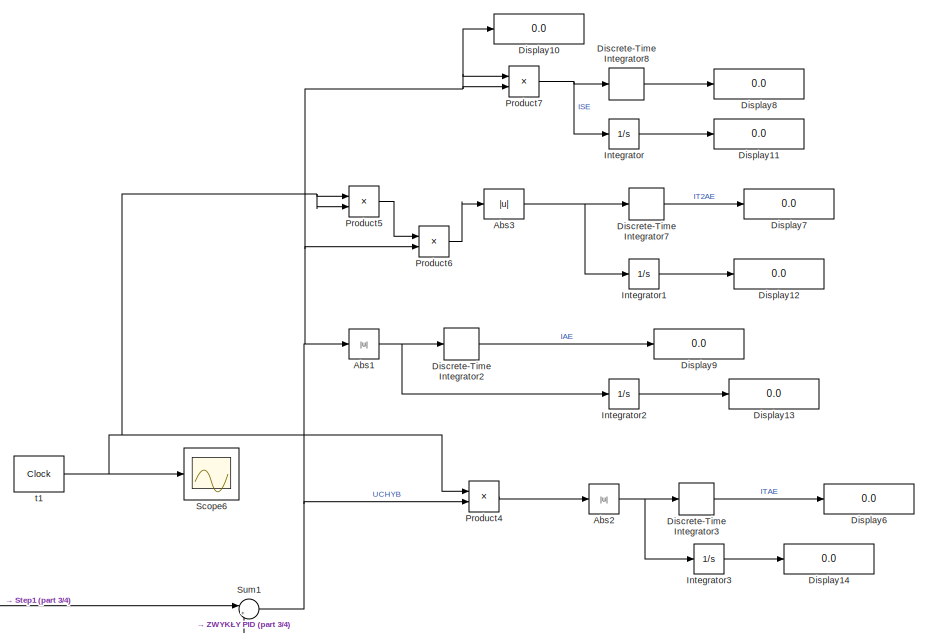
[diagram: root canvas - part 1/4, top center region]
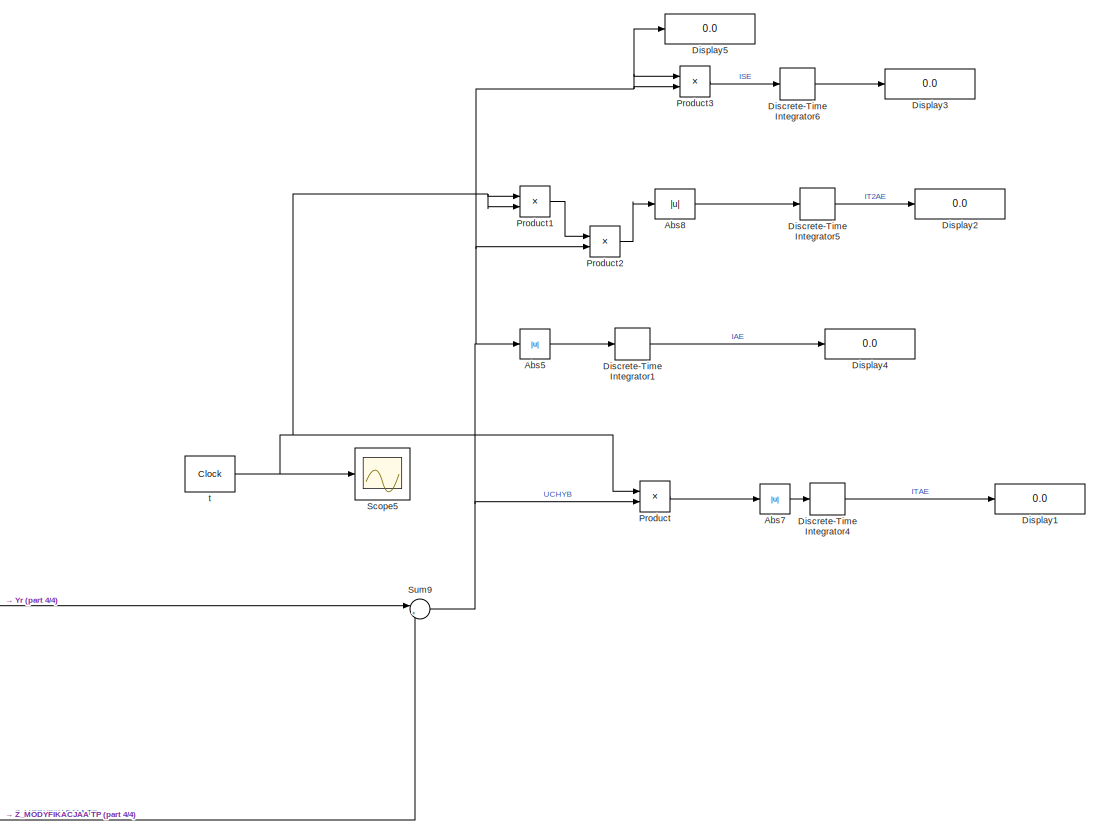
[diagram: root canvas - part 2/4, middle right region]
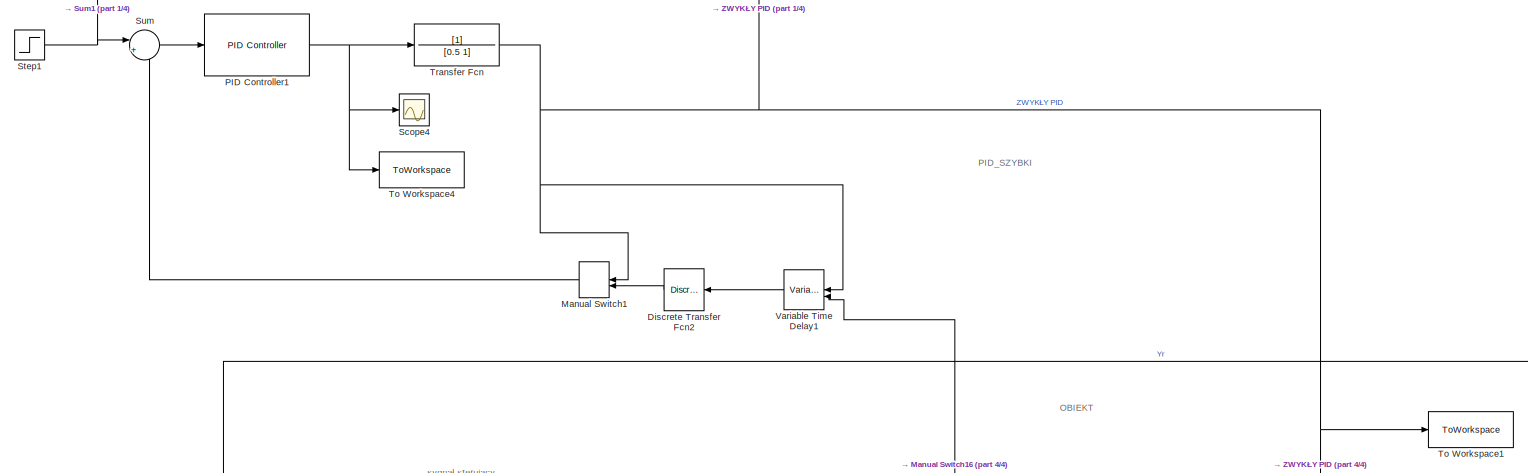
[diagram: root canvas - part 3/4, middle left region]
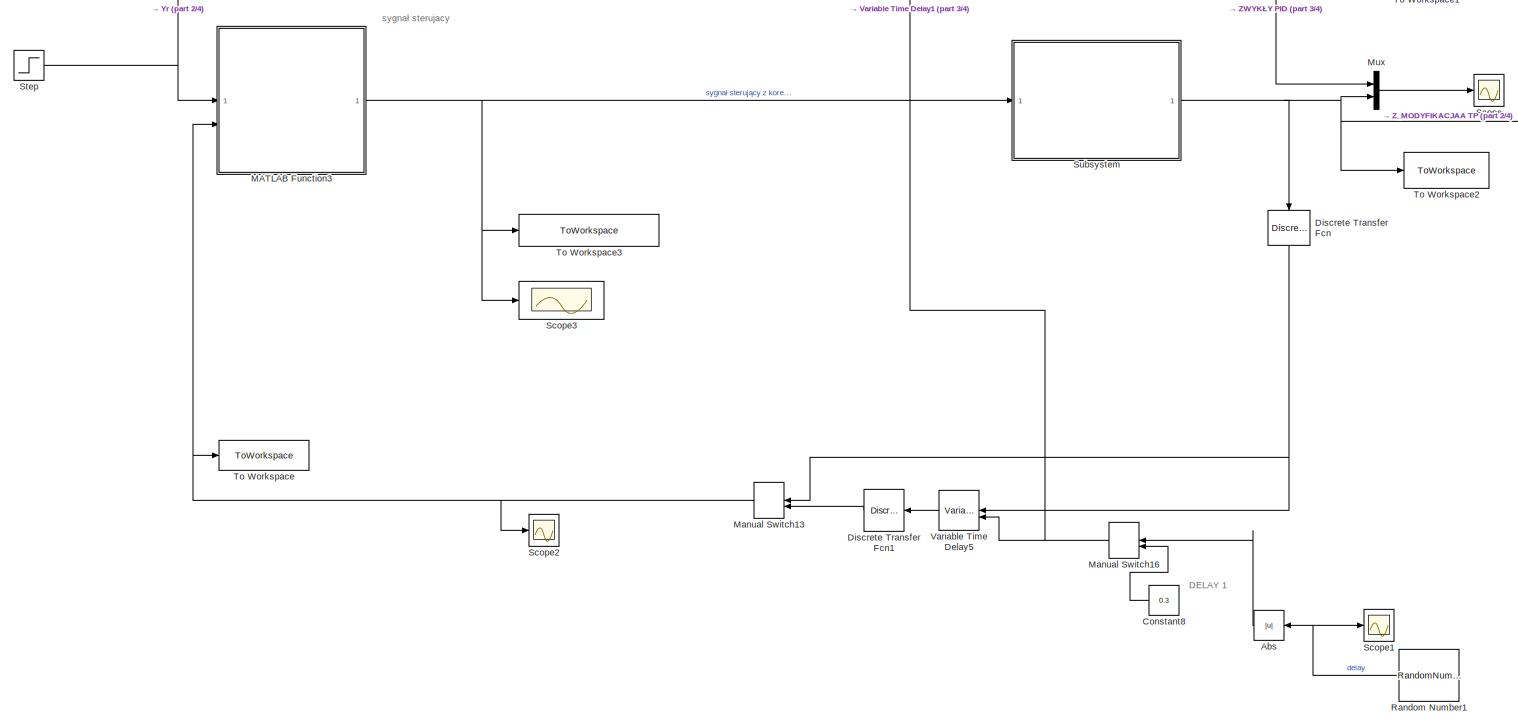
[diagram: root canvas - part 4/4, bottom left region]
MODEL slx_19fa9d39588f
KIND model
CONFIG AbsTol = auto
CONFIG EnableMultiTasking = off
CONFIG FixedStep = auto
CONFIG MaxStep = auto
CONFIG MinStep = auto
CONFIG RelTol = 1e-3
CONFIG SampleTimeConstraint = Unconstrained
CONFIG SolverName = VariableStepAuto
CONFIG StartTime = 0.0
CONFIG StopTime = 20
BLOCK [Abs] Abs
  NameLocation = top
  SaturateOnIntegerOverflow = off
BLOCK [Abs] Abs1
  SaturateOnIntegerOverflow = off
BLOCK [Abs] Abs2
  SaturateOnIntegerOverflow = off
BLOCK [Abs] Abs3
  SaturateOnIntegerOverflow = off
BLOCK [Abs] Abs5
  SaturateOnIntegerOverflow = off
BLOCK [Abs] Abs7
  SaturateOnIntegerOverflow = off
BLOCK [Abs] Abs8
  SaturateOnIntegerOverflow = off
BLOCK [Constant] Constant8
  Value = 0.3
BLOCK [DiscreteTransferFcn] Discrete Transfer Fcn
  Denominator = [1]
  InputPortMap = u0
  NameLocation = left
  SampleTime = SensTs
BLOCK [DiscreteTransferFcn] Discrete Transfer Fcn1
  Denominator = [1]
  InputPortMap = u0
  NameLocation = top
  SampleTime = SensTs
BLOCK [DiscreteTransferFcn] Discrete Transfer Fcn2
  Denominator = [1]
  InputPortMap = u0
  NameLocation = top
  SampleTime = SensTs
BLOCK [DiscreteIntegrator] Discrete-Time Integrator1
  ICPrevOutput = DiscIntNeverNeededParam
  ICPrevScaledInput = DiscIntNeverNeededParam
  InitialConditionSetting = Auto
  SampleTime = Ts
BLOCK [DiscreteIntegrator] Discrete-Time Integrator2
  ICPrevOutput = DiscIntNeverNeededParam
  ICPrevScaledInput = DiscIntNeverNeededParam
  InitialConditionSetting = Auto
  SampleTime = Ts
BLOCK [DiscreteIntegrator] Discrete-Time Integrator3
  ICPrevOutput = DiscIntNeverNeededParam
  ICPrevScaledInput = DiscIntNeverNeededParam
  InitialConditionSetting = Auto
  SampleTime = Ts
BLOCK [DiscreteIntegrator] Discrete-Time Integrator4
  ICPrevOutput = DiscIntNeverNeededParam
  ICPrevScaledInput = DiscIntNeverNeededParam
  InitialConditionSetting = Auto
  SampleTime = Ts
BLOCK [DiscreteIntegrator] Discrete-Time Integrator5
  ICPrevOutput = DiscIntNeverNeededParam
  ICPrevScaledInput = DiscIntNeverNeededParam
  InitialConditionSetting = Auto
  SampleTime = Ts
BLOCK [DiscreteIntegrator] Discrete-Time Integrator6
  ICPrevOutput = DiscIntNeverNeededParam
  ICPrevScaledInput = DiscIntNeverNeededParam
  InitialConditionSetting = Auto
  SampleTime = Ts
BLOCK [DiscreteIntegrator] Discrete-Time Integrator7
  ICPrevOutput = DiscIntNeverNeededParam
  ICPrevScaledInput = DiscIntNeverNeededParam
  InitialConditionSetting = Auto
  SampleTime = Ts
BLOCK [DiscreteIntegrator] Discrete-Time Integrator8
  ICPrevOutput = DiscIntNeverNeededParam
  ICPrevScaledInput = DiscIntNeverNeededParam
  InitialConditionSetting = Auto
  SampleTime = Ts
BLOCK [Display] Display1
  Decimation = 1
BLOCK [Display] Display10
  Decimation = 1
BLOCK [Display] Display11
  Decimation = 1
BLOCK [Display] Display12
  Decimation = 1
BLOCK [Display] Display13
  Decimation = 1
BLOCK [Display] Display14
  Decimation = 1
BLOCK [Display] Display2
  Decimation = 1
BLOCK [Display] Display3
  Decimation = 1
BLOCK [Display] Display4
  Decimation = 1
BLOCK [Display] Display5
  Decimation = 1
BLOCK [Display] Display6
  Decimation = 1
BLOCK [Display] Display7
  Decimation = 1
BLOCK [Display] Display8
  Decimation = 1
BLOCK [Display] Display9
  Decimation = 1
BLOCK [Integrator] Integrator
BLOCK [Integrator] Integrator1
BLOCK [Integrator] Integrator2
BLOCK [Integrator] Integrator3
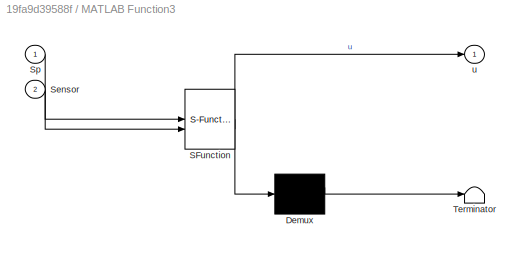
BLOCK [SubSystem] MATLAB Function3
  ErrorFcn = Stateflow.Translate.translate
  LibrarySourceBlock = simulink/User-Defined\nFunctions/MATLAB Function
  PermitHierarchicalResolution = ExplicitOnly
  SFBlockType = MATLAB Function
  SystemSampleTime = 0.01
  TreatAsAtomicUnit = on
BLOCK [Demux] MATLAB Function3/ Demux 
  Outputs = 1
BLOCK [S-Function] MATLAB Function3/ SFunction 
  EnableBusSupport = on
  FunctionName = sf_sfun
  PortCounts = [2 2]
  SFcnIsStateOwnerBlock = off
  SFunctionDeploymentMode = off
  Tag = Stateflow S-Function 4
BLOCK [Terminator] MATLAB Function3/ Terminator 
BLOCK [Inport] MATLAB Function3/Sensor
  Port = 2
BLOCK [Inport] MATLAB Function3/Sp
BLOCK [Outport] MATLAB Function3/u
BLOCK [ManualSwitch] Manual Switch1
  CurrentSetting = 0
BLOCK [ManualSwitch] Manual Switch13
  CurrentSetting = 0
BLOCK [ManualSwitch] Manual Switch16
  CurrentSetting = 0
BLOCK [Mux] Mux
  DisplayOption = bar
  Inputs = 2
BLOCK [Reference] PID Controller1  REF=slpidlib/PID Controller
  LibrarySourceBlock = simulink/Continuous/PID Controller
  SourceBlock = slpidlib/PID Controller
  SourceType = PID 1dof
BLOCK [Product] Product
BLOCK [Product] Product1
BLOCK [Product] Product2
BLOCK [Product] Product3
BLOCK [Product] Product4
BLOCK [Product] Product5
BLOCK [Product] Product6
BLOCK [Product] Product7
BLOCK [RandomNumber] Random Number1
  Mean = 0.5
  NameLocation = top
  SampleTime = 0.5
  Variance = 0.0001
BLOCK [Scope] Scope
  Floating = off
  NumInputPorts = 1
  ScopeSpecificationString = Simulink.scopes.TimeScopeBlockCfg('CurrentConfiguration', extmgr.ConfigurationSet(extmgr.Configuration('Core','General UI',true),extmgr.Configuration('Core','Source UI',true),extmgr.Configuration('Sources','WiredSimulink',true,'DataLoggingVariableName','ScopeData1'),extmgr.Configuration('Visuals','Time Domain',true,'SerializedDisplays',{struct('MinYLimReal','-3.12498','MaxYLimReal','28.12483','YLa...<+1445ch>
BLOCK [Scope] Scope1
  Floating = off
  NumInputPorts = 1
  ScopeSpecificationString = Simulink.scopes.TimeScopeBlockCfg('CurrentConfiguration', extmgr.ConfigurationSet(extmgr.Configuration('Core','General UI',true),extmgr.Configuration('Core','Source UI',true),extmgr.Configuration('Sources','WiredSimulink',true,'DataLoggingVariableName','ScopeData1'),extmgr.Configuration('Visuals','Time Domain',true,'SerializedDisplays',{struct('MinYLimReal','0.48148','MaxYLimReal','0.52202','YLabe...<+1416ch>
BLOCK [Scope] Scope2
  Floating = off
  NumInputPorts = 1
  ScopeSpecificationString = Simulink.scopes.TimeScopeBlockCfg('CurrentConfiguration', extmgr.ConfigurationSet(extmgr.Configuration('Core','General UI',true),extmgr.Configuration('Core','Source UI',true),extmgr.Configuration('Sources','WiredSimulink',true,'DataLoggingVariableName','ScopeData2'),extmgr.Configuration('Visuals','Time Domain',true,'SerializedDisplays',{struct('MinYLimReal','-4.39921','MaxYLimReal','39.59288','YLa...<+1370ch>
BLOCK [Scope] Scope3
  Floating = off
  NumInputPorts = 1
  ScopeSpecificationString = Simulink.scopes.TimeScopeBlockCfg('CurrentConfiguration', extmgr.ConfigurationSet(extmgr.Configuration('Core','General UI',true),extmgr.Configuration('Core','Source UI',true),extmgr.Configuration('Sources','WiredSimulink',true),extmgr.Configuration('Visuals','Time Domain',true,'SerializedDisplays',{struct('MinYLimReal','6.92764','MaxYLimReal','27.00772','YLabelReal','','MinYLimMag','6.92764','MaxY...<+2199ch>
BLOCK [Scope] Scope4
  Floating = off
  NumInputPorts = 1
  ScopeSpecificationString = Simulink.scopes.TimeScopeBlockCfg('CurrentConfiguration', extmgr.ConfigurationSet(extmgr.Configuration('Core','General UI',true),extmgr.Configuration('Core','Source UI',true),extmgr.Configuration('Sources','WiredSimulink',true,'DataLoggingVariableName','ScopeData1'),extmgr.Configuration('Visuals','Time Domain',true,'SerializedDisplays',{struct('MinYLimReal','6.39405','MaxYLimReal','30.6166','YLabe...<+1424ch>
BLOCK [Scope] Scope5
  Floating = off
  NumInputPorts = 1
  ScopeSpecificationString = Simulink.scopes.TimeScopeBlockCfg('CurrentConfiguration', extmgr.ConfigurationSet(extmgr.Configuration('Core','General UI',true),extmgr.Configuration('Core','Source UI',true),extmgr.Configuration('Sources','WiredSimulink',true,'DataLoggingVariableName','ScopeData1'),extmgr.Configuration('Visuals','Time Domain',true,'SerializedDisplays',{struct('MinYLimReal','-5.00000','MaxYLimReal','45.00000','YLa...<+1418ch>
BLOCK [Scope] Scope6
  Floating = off
  NumInputPorts = 1
  ScopeSpecificationString = Simulink.scopes.TimeScopeBlockCfg('CurrentConfiguration', extmgr.ConfigurationSet(extmgr.Configuration('Core','General UI',true),extmgr.Configuration('Core','Source UI',true),extmgr.Configuration('Sources','WiredSimulink',true,'DataLoggingVariableName','ScopeData2'),extmgr.Configuration('Visuals','Time Domain',true,'SerializedDisplays',{struct('MinYLimReal','-5.00000','MaxYLimReal','45.00000','YLa...<+1418ch>
BLOCK [Step] Step
  After = 25
  Time = 0
BLOCK [Step] Step1
  After = 25
  Time = 0
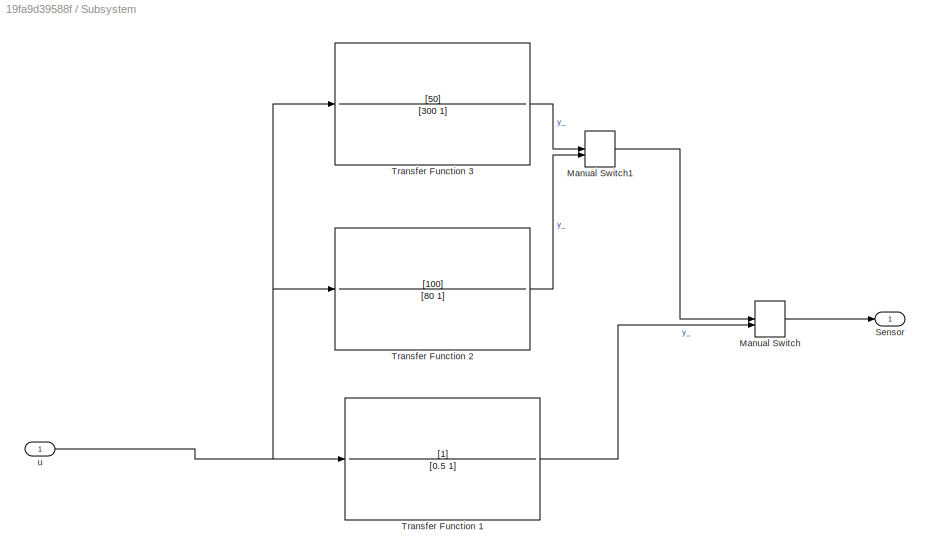
BLOCK [SubSystem] Subsystem
BLOCK [ManualSwitch] Subsystem/Manual Switch
  CurrentSetting = 0
BLOCK [ManualSwitch] Subsystem/Manual Switch1
  CurrentSetting = 0
BLOCK [Outport] Subsystem/Sensor
BLOCK [TransferFcn] Subsystem/Transfer Function 1
  Denominator = [0.5 1]
BLOCK [TransferFcn] Subsystem/Transfer Function 2
  Denominator = [80 1]
  Numerator = [100]
BLOCK [TransferFcn] Subsystem/Transfer Function 3
  Denominator = [300 1]
  Numerator = [50]
BLOCK [Inport] Subsystem/u
BLOCK [Sum] Sum
  Inputs = |+-
BLOCK [Sum] Sum1
  Inputs = |+-
BLOCK [Sum] Sum9
  Inputs = |+-
BLOCK [ToWorkspace] To Workspace
  FixptAsFi = on
  MaxDataPoints = inf
  SampleTime = -1
  SaveFormat = Timeseries
  VariableName = Sensor_
BLOCK [ToWorkspace] To Workspace1
  FixptAsFi = on
  MaxDataPoints = inf
  SampleTime = -1
  SaveFormat = Timeseries
  VariableName = PID_BAS
BLOCK [ToWorkspace] To Workspace2
  FixptAsFi = on
  MaxDataPoints = inf
  SampleTime = -1
  SaveFormat = Timeseries
  VariableName = EKSTRAP
BLOCK [ToWorkspace] To Workspace3
  FixptAsFi = on
  MaxDataPoints = inf
  SampleTime = -1
  SaveFormat = Timeseries
  VariableName = z_kompensacja_u
BLOCK [ToWorkspace] To Workspace4
  FixptAsFi = on
  MaxDataPoints = inf
  SampleTime = -1
  SaveFormat = Timeseries
  VariableName = STERUJACY_PID
BLOCK [TransferFcn] Transfer Fcn
  Denominator = [0.5 1]
BLOCK [VariableTransportDelay] Variable Time Delay1
  MaximumDelay = 1000
BLOCK [VariableTransportDelay] Variable Time Delay5
  MaximumDelay = 1000
BLOCK [Clock] t
  Decimation = 1
BLOCK [Clock] t1
  Decimation = 1
ANNOTATION (root): OBIEKT
ANNOTATION (root): DELAY 1
ANNOTATION (root): PID_SZYBKI
ANNOTATION (root): sygnał sterujacy
NET Abs1:1 -> Discrete-Time Integrator2:1, Integrator2:1
NET Abs2:1 -> Discrete-Time Integrator3:1, Integrator3:1
NET Abs3:1 -> Discrete-Time Integrator7:1, Integrator1:1
LINE Abs5:1 -> Discrete-Time Integrator1:1
LINE Abs7:1 -> Discrete-Time Integrator4:1
LINE Abs8:1 -> Discrete-Time Integrator5:1
LINE Abs:1 -> Manual Switch16:1
LINE Constant8:1 -> Manual Switch16:2
LINE Discrete Transfer Fcn1:1 -> Manual Switch13:2
LINE Discrete Transfer Fcn2:1 -> Manual Switch1:2
NET Discrete Transfer Fcn:1 -> Manual Switch13:1, Variable Time Delay5:1
LINE Discrete-Time Integrator1:1 -> Display4:1
LINE Discrete-Time Integrator2:1 -> Display9:1
LINE Discrete-Time Integrator3:1 -> Display6:1
LINE Discrete-Time Integrator4:1 -> Display1:1
LINE Discrete-Time Integrator5:1 -> Display2:1
LINE Discrete-Time Integrator6:1 -> Display3:1
LINE Discrete-Time Integrator7:1 -> Display7:1
LINE Discrete-Time Integrator8:1 -> Display8:1
LINE Integrator1:1 -> Display12:1
LINE Integrator2:1 -> Display13:1
LINE Integrator3:1 -> Display14:1
LINE Integrator:1 -> Display11:1
NET MATLAB Function3:1 -> Scope3:1, Subsystem:1, To Workspace3:1
NET Manual Switch13:1 -> MATLAB Function3:2, Scope2:1, To Workspace:1
NET Manual Switch16:1 -> Variable Time Delay1:2, Variable Time Delay5:2
LINE Manual Switch1:1 -> Sum:2
LINE Mux:1 -> Scope:1
NET PID Controller1:1 -> Scope4:1, To Workspace4:1, Transfer Fcn:1
LINE Product1:1 -> Product2:1
LINE Product2:1 -> Abs8:1
LINE Product3:1 -> Discrete-Time Integrator6:1
LINE Product4:1 -> Abs2:1
LINE Product5:1 -> Product6:1
LINE Product6:1 -> Abs3:1
NET Product7:1 -> Discrete-Time Integrator8:1, Integrator:1
LINE Product:1 -> Abs7:1
NET Random Number1:1 -> Abs:1, Scope1:1
NET Step1:1 -> Sum1:1, Sum:1
NET Step:1 -> MATLAB Function3:1, Sum9:1
LINE Subsystem/Manual Switch1:1 -> Subsystem/Manual Switch:1
LINE Subsystem/Manual Switch:1 -> Subsystem/Sensor:1
LINE Subsystem/Transfer Function 1:1 -> Subsystem/Manual Switch:2
LINE Subsystem/Transfer Function 2:1 -> Subsystem/Manual Switch1:2
LINE Subsystem/Transfer Function 3:1 -> Subsystem/Manual Switch1:1
NET Subsystem/u:1 -> Subsystem/Transfer Function 1:1, Subsystem/Transfer Function 2:1, Subsystem/Transfer Function 3:1
NET Subsystem:1 -> Discrete Transfer Fcn:1, Mux:2, Sum9:2, To Workspace2:1
NET Sum1:1 -> Abs1:1, Display10:1, Product4:2, Product6:2, Product7:1, Product7:2
NET Sum9:1 -> Abs5:1, Display5:1, Product2:2, Product3:1, Product3:2, Product:2
LINE Sum:1 -> PID Controller1:1
NET Transfer Fcn:1 -> Manual Switch1:1, Mux:1, Sum1:2, To Workspace1:1, Variable Time Delay1:1
LINE Variable Time Delay1:1 -> Discrete Transfer Fcn2:1
LINE Variable Time Delay5:1 -> Discrete Transfer Fcn1:1
NET t1:1 -> Product4:1, Product5:1, Product5:2, Scope6:1
NET t:1 -> Product1:1, Product1:2, Product:1, Scope5:1
note: NET lines group one-source signal fan-out (src -> all destinations, sorted); 1:1 wires keep LINE
CHART MATLAB Function3 states=1 transitions=1
  STATE_LABEL 'eML_blk_kernel()'
  STATE_LABEL 'SCRIPT:\nfunction u = fcn(Sp,Sensor) %wyjscie = funkcja(wejscia)\npersistent init e2 e1 u2 u1 ku1 ku2 ke0 ke1 ke2 pomiar czas Ts vec_czas przewidywaniex N;\n\nif isempty(init) %wykonuje się tylko raz\n\n\n%NASTAWY : OBIEKT 100/80s+1\n\n% Kp = 1.50833;\n% Ki =0.0031789;\n% Kd = 2.9488110947;\n% FCoef = 0.121320071;\n\n%NASTAWY: OBIEKT 1/100s+1\n\n% Kp = 4.00784874415517;\n% Ki =0.0905840820709279;\n% Kd = 10.3091445...<+1653ch>'
CHART  states=0 transitions=0
